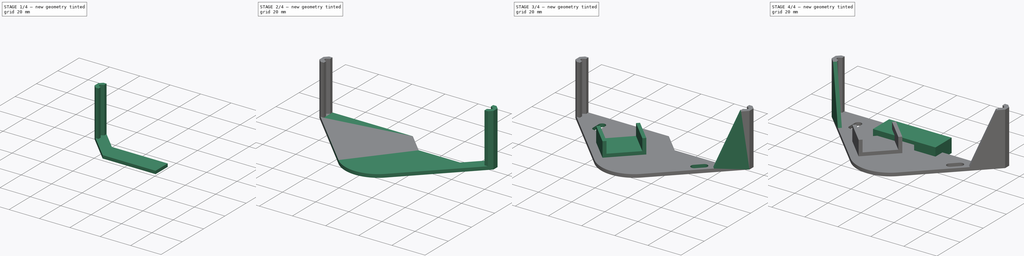
[diagram: build sequence overview — one tinted view per stage of 4, left to right]
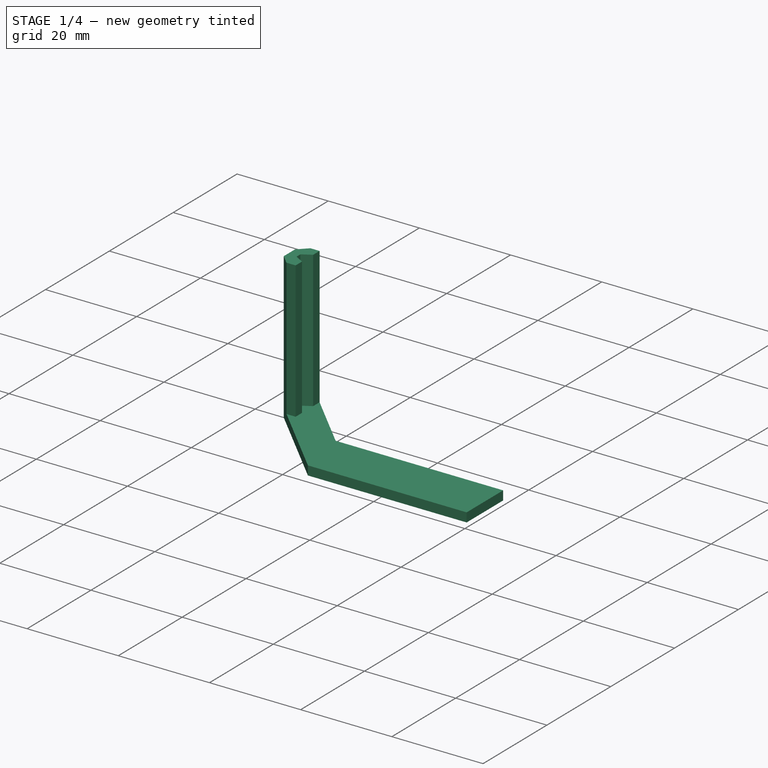
[diagram: stage 1 of 4 — iso view after this stage's code; geometry added in this stage tinted green]
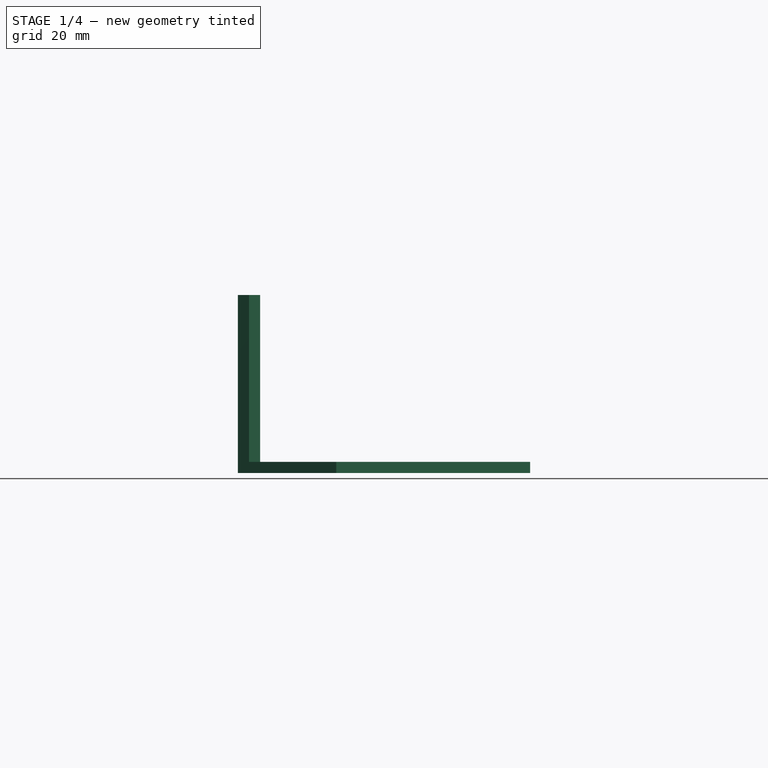
[diagram: stage 1 of 4 — front view after this stage's code; geometry added in this stage tinted green]
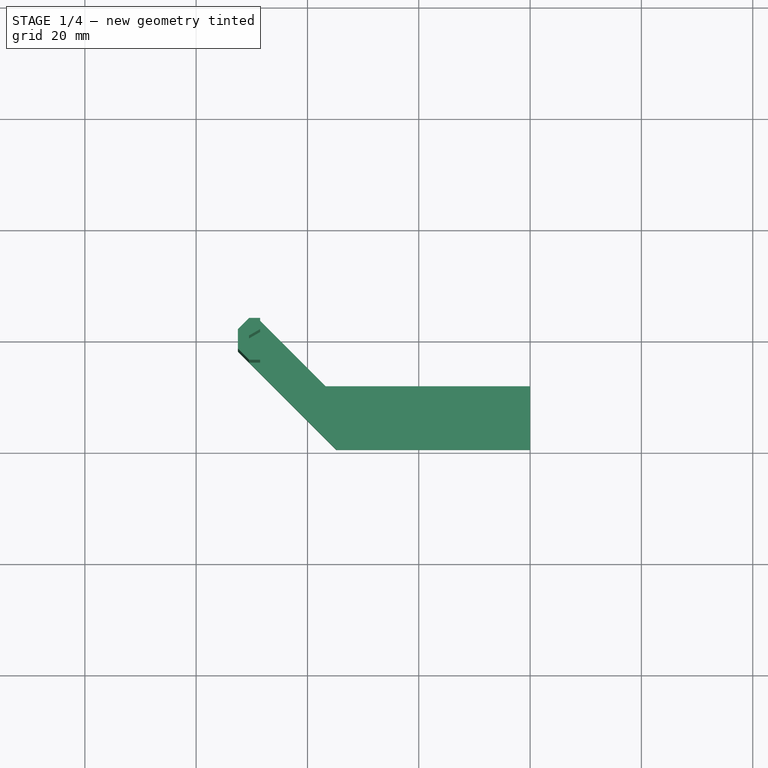
[diagram: stage 1 of 4 — top view after this stage's code; geometry added in this stage tinted green]
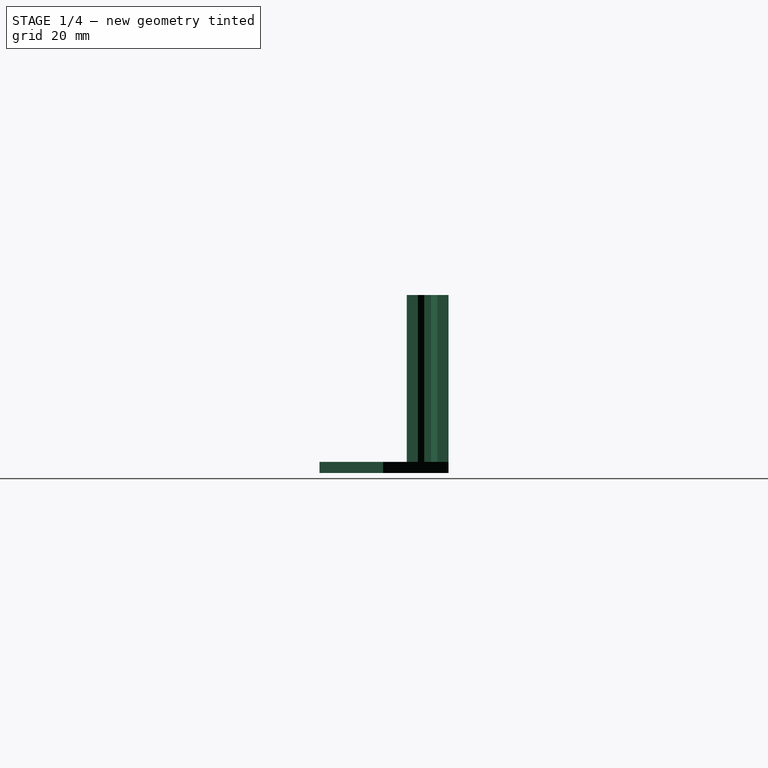
[diagram: stage 1 of 4 — right view after this stage's code; geometry added in this stage tinted green]
FCSTD DOCUMENT  (FreeCAD 1.0R39319 (Git))
Label: Superrollo_GW60_holder
License: All rights reserved
LicenseURL: https://en.wikipedia.org/wiki/All_rights_reserved
objects: Sketcher::SketchObject×9, PartDesign::Pad×8, PartDesign::Body×2, PartDesign::Mirrored×1, PartDesign::Pocket×1
note: 49 computed .brp shape members not serialized (recipe doc carries the construction recipe); baked Part::Feature solids carry a one-line shape summary decoded from their .brp

FEATURE [PartDesign::Body] Body  label="CableClampBody"
  AllowCompound = false
  Group = -> [Sketch,Pad]
  Origin = -> Origin
  Tip = -> Pad
FEATURE [Sketcher::SketchObject] Sketch001
  ArcFitTolerance = 1e-06
  AttachmentSupport = -> [XY_Plane001]
  FullyConstrained = true
  MakeInternals = false
  MapMode = 5
  expr: Constraints[15] = 101 / 2
  sketch-geometry (14):
    g0: LineSegment StartX=-50.5 StartY=0.6 StartZ=0 EndX=-50.5 EndY=-0.6 EndZ=0
    g1: LineSegment StartX=-50.5 StartY=-0.6 StartZ=0 EndX=-48.5 EndY=-1.7547 EndZ=0
    g2: LineSegment StartX=-48.5 StartY=-3.7547 StartZ=0 EndX=-50.5 EndY=-3.7547 EndZ=0
    g3: LineSegment StartX=-48.5 StartY=-1.7547 StartZ=0 EndX=-48.5 EndY=-3.7547 EndZ=0
    g4: LineSegment StartX=-50.5 StartY=0.6 StartZ=0 EndX=-48.5 EndY=1.7547 EndZ=0
    g5: LineSegment StartX=-48.5 StartY=3.7547 StartZ=0 EndX=-50.5 EndY=3.7547 EndZ=0
    g6: LineSegment StartX=-48.5 StartY=1.7547 StartZ=0 EndX=-48.5 EndY=3.7547 EndZ=0
    g7: LineSegment StartX=-52.5 StartY=1.7547 StartZ=0 EndX=-52.5 EndY=-1.7547 EndZ=0
    g8: ArcOfCircle [constr] CenterX=-50.5 CenterY=1.7547 CenterZ=0 NormalX=0 NormalY=0 NormalZ=1 AngleXU=0 Radius=2 StartAngle=1.5708 EndAngle=3.14159
    g9: GeomPoint [constr] X=-52.5 Y=3.7547 Z=0
    g10: LineSegment StartX=-50.5 StartY=3.7547 StartZ=0 EndX=-52.5 EndY=1.7547 EndZ=0
    g11: ArcOfCircle [constr] CenterX=-50.5 CenterY=-1.7547 CenterZ=0 NormalX=0 NormalY=0 NormalZ=1 AngleXU=0 Radius=2 StartAngle=3.14159 EndAngle=4.71239
    g12: GeomPoint [constr] X=-52.5 Y=-3.7547 Z=0
    g13: LineSegment StartX=-52.5 StartY=-1.7547 StartZ=0 EndX=-50.5 EndY=-3.7547 EndZ=0
  constraints (32):
    c: Coincident(g1,g0)
    c: Horizontal(g2)
    c: Coincident(g1,g3)
    c: Coincident(g3,g2)
    c: Vertical(g3)
    c: Coincident(g4,g6)
    c: Coincident(g6,g5)
    c: Coincident(g0,g4)
    c: Symmetric(g9,g12,g-1)
    c: Symmetric(g0,g0,g-1)
    c: Symmetric(g1,g4,g-1)
    c: Symmetric(g5,g2,g-1)
    c: DistanceX(g9,g0) = 2
    c: DistanceY(g6,g6) = 2
    c: DistanceY(g0,g0) = 1.2
    c: DistanceX(g0,g-1) = 50.5
    c: DistanceX(g12,g2) = 4
    c: Angle(g1,g4) = 1.0472
    c: PointOnObject(g9,g5)
    c: PointOnObject(g9,g7)
    c: Tangent(g5,g8) = -1.5708
    c: Tangent(g7,g8) = -1.5708
    c: Coincident(g10,g5)
    c: Coincident(g10,g7)
    c: PointOnObject(g12,g7)
    c: PointOnObject(g12,g2)
    c: Tangent(g7,g11) = -1.5708
    c: Tangent(g2,g11) = 1.5708
    c: Coincident(g13,g7)
    c: Coincident(g13,g2)
    c: Equal(g11,g8)
    c: Radius(g8) = 2
FEATURE [PartDesign::Pad] Pad001
  Direction = (0,0,1)
  Length = 30
  Length2 = 10
  Profile = -> Sketch001
  ReferenceAxis = -> Sketch001 [N_Axis]
  Refine = true
  Suppressed = false
  Type = 0
FEATURE [Sketcher::SketchObject] Sketch002
  ArcFitTolerance = 1e-06
  AttachmentSupport = -> [XY_Plane001]
  ExternalGeometry = -> [Pad001]
  FullyConstrained = true
  MakeInternals = false
  MapMode = 5
  sketch-geometry (8):
    g0: LineSegment StartX=-48.5 StartY=3.7547 StartZ=0 EndX=-50.5 EndY=3.7547 EndZ=0
    g1: LineSegment StartX=-50.5 StartY=3.7547 StartZ=0 EndX=-52.5 EndY=1.7547 EndZ=0
    g2: LineSegment StartX=-52.5 StartY=1.7547 StartZ=0 EndX=-52.5 EndY=-1.7547 EndZ=0
    g3: LineSegment StartX=-52.5 StartY=-1.7547 StartZ=0 EndX=-34.8223 EndY=-19.4324 EndZ=0
    g4: LineSegment StartX=-48.5 StartY=3.7547 StartZ=0 EndX=-36.7453 EndY=-8 EndZ=0
    g5: LineSegment StartX=-34.8223 StartY=-19.4324 StartZ=0 EndX=0 EndY=-19.4324 EndZ=0
    g6: LineSegment StartX=-36.7453 StartY=-8 StartZ=0 EndX=0 EndY=-8 EndZ=0
    g7: LineSegment StartX=0 StartY=-8 StartZ=0 EndX=0 EndY=-19.4324 EndZ=0
  constraints (20):
    c: Coincident(g-5,g0)
    c: Coincident(g0,g-5)
    c: Coincident(g0,g1)
    c: Coincident(g1,g-3)
    c: Coincident(g1,g2)
    c: Coincident(g2,g-3)
    c: Coincident(g2,g3)
    c: PointOnObject(g-4,g3)
    c: Distance(g3) = 25
    c: Coincident(g0,g4)
    c: Parallel(g4,g3)
    c: DistanceY(g4,g-1) = 8
    c: Coincident(g3,g5)
    c: Horizontal(g5)
    c: Coincident(g4,g6)
    c: Horizontal(g6)
    c: PointOnObject(g6,g-2)
    c: PointOnObject(g5,g-2)
    c: Coincident(g7,g6)
    c: Coincident(g7,g5)
FEATURE [PartDesign::Pad] Pad002
  BaseFeature = -> Pad001
  Direction = (0,0,1)
  Length = 2
  Length2 = 10
  Profile = -> Sketch002
  ReferenceAxis = -> Sketch002 [N_Axis]
  Refine = true
  Reversed = true
  Suppressed = false
  Type = 0
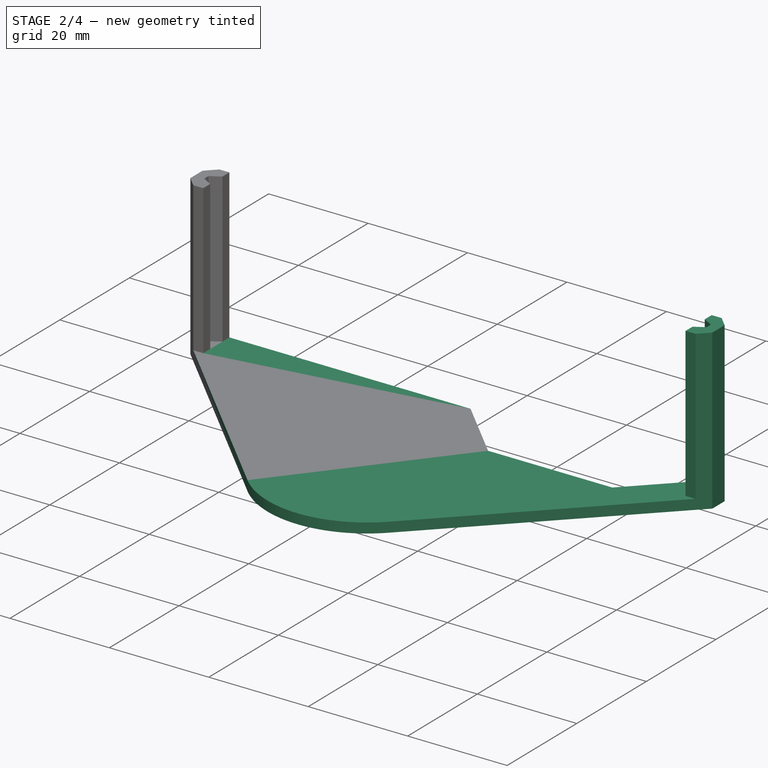
[diagram: stage 2 of 4 — iso view after this stage's code; geometry added in this stage tinted green]
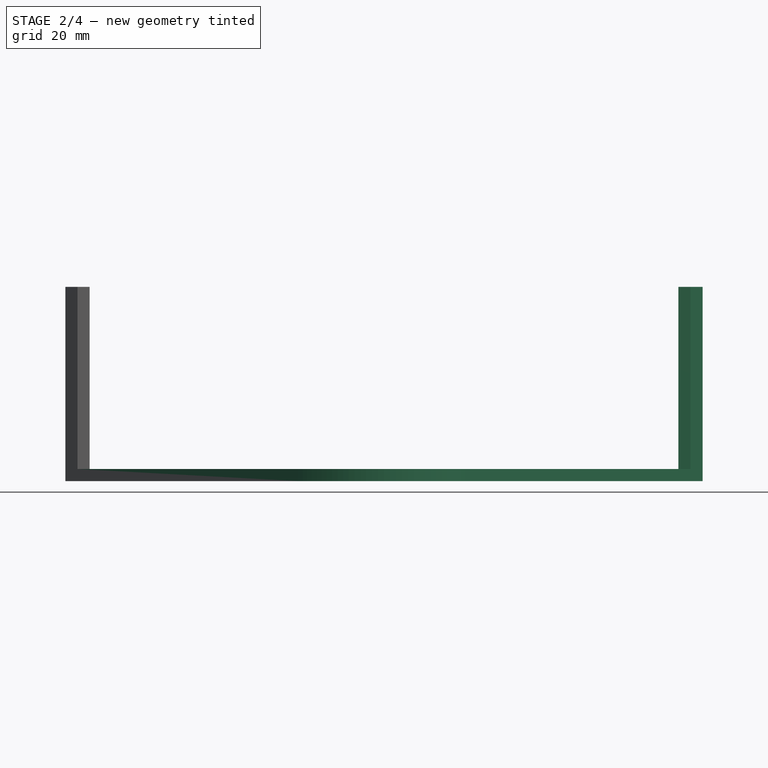
[diagram: stage 2 of 4 — front view after this stage's code; geometry added in this stage tinted green]
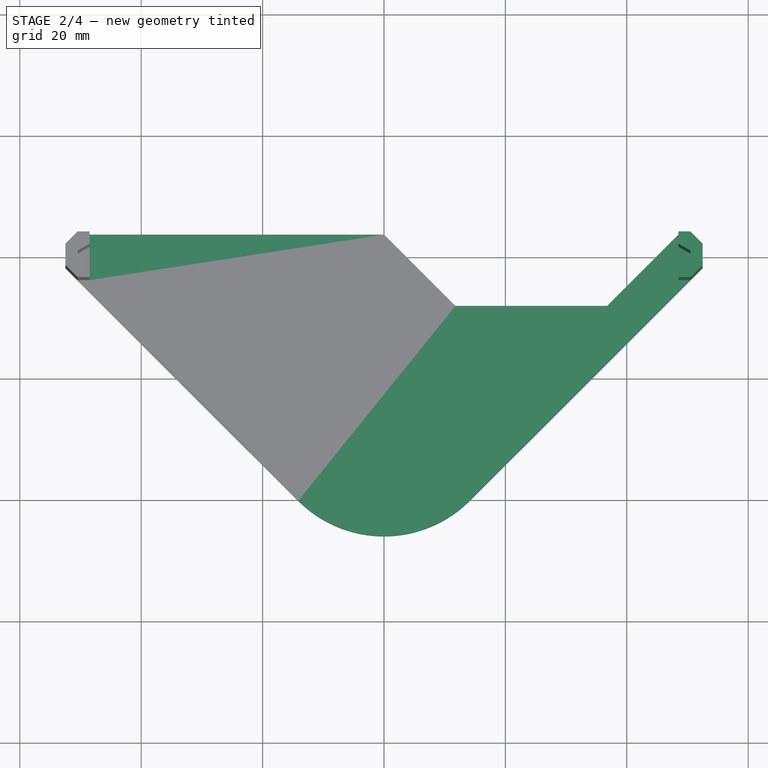
[diagram: stage 2 of 4 — top view after this stage's code; geometry added in this stage tinted green]
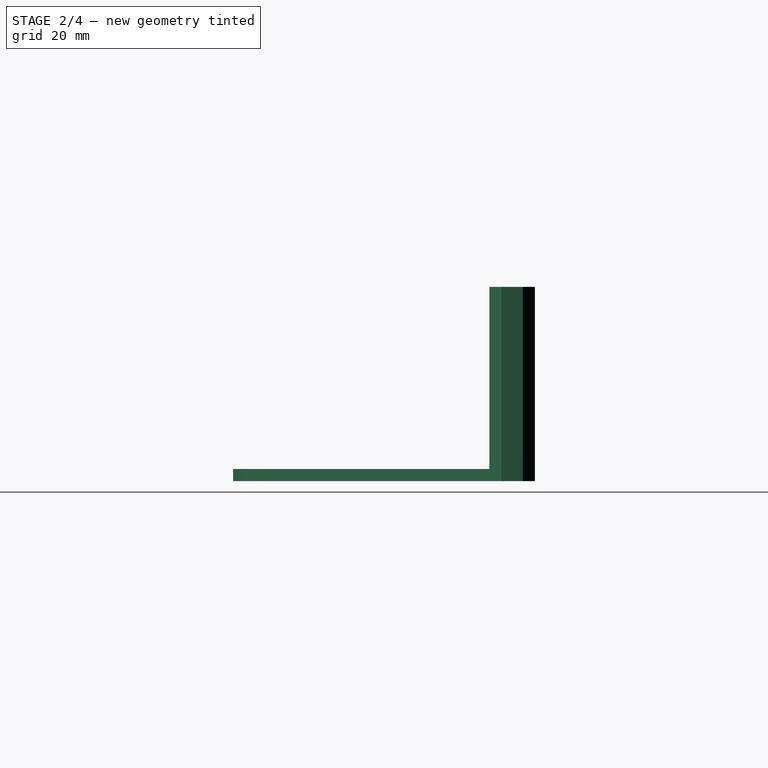
[diagram: stage 2 of 4 — right view after this stage's code; geometry added in this stage tinted green]
FEATURE [PartDesign::Mirrored] Mirrored
  BaseFeature = -> Pad002
  MirrorPlane = -> Sketch002 [V_Axis]
  Originals = -> [Pad002,Pad001]
  Refine = true
  Suppressed = false
  TransformMode = 0
FEATURE [Sketcher::SketchObject] Sketch003
  ArcFitTolerance = 1e-06
  AttachmentSupport = -> [XY_Plane001]
  ExternalGeometry = -> [Mirrored]
  FullyConstrained = true
  MakeInternals = false
  MapMode = 5
  sketch-geometry (4):
    g0: LineSegment StartX=11.7547 StartY=-8 StartZ=0 EndX=-36.7453 EndY=-8 EndZ=0
    g1: LineSegment StartX=-36.7453 StartY=-8 StartZ=0 EndX=-48.5 EndY=3.7547 EndZ=0
    g2: LineSegment StartX=-48.5 StartY=3.7547 StartZ=0 EndX=0 EndY=3.7547 EndZ=0
    g3: LineSegment StartX=0 StartY=3.7547 StartZ=0 EndX=11.7547 EndY=-8 EndZ=0
  constraints (10):
    c: PointOnObject(g0,g-4)
    c: Coincident(g0,g-4)
    c: Coincident(g1,g0)
    c: Coincident(g1,g-3)
    c: Coincident(g2,g1)
    c: PointOnObject(g2,g-2)
    c: Horizontal(g2)
    c: Coincident(g3,g2)
    c: Coincident(g3,g0)
    c: Parallel(g1,g3)
FEATURE [PartDesign::Pad] Pad003
  BaseFeature = -> Mirrored
  Direction = (0,0,1)
  Length = 2
  Length2 = 10
  Profile = -> Sketch003
  ReferenceAxis = -> Sketch003 [N_Axis]
  Refine = true
  Reversed = true
  Suppressed = false
  Type = 0
FEATURE [Sketcher::SketchObject] Sketch004
  ArcFitTolerance = 1e-06
  AttachmentSupport = -> [XY_Plane001]
  ExternalGeometry = -> [Pad003]
  FullyConstrained = true
  MakeInternals = false
  MapMode = 5
  sketch-geometry (5):
    g0: LineSegment StartX=-34.8223 StartY=-19.4324 StartZ=0 EndX=-14.1421 EndY=-40.1126 EndZ=0
    g1: LineSegment StartX=34.8223 StartY=-19.4324 StartZ=0 EndX=14.1421 EndY=-40.1126 EndZ=0
    g2: LineSegment StartX=34.8223 StartY=-19.4324 StartZ=0 EndX=-34.8223 EndY=-19.4324 EndZ=0
    g3: ArcOfCircle CenterX=-2.2e-15 CenterY=-25.9704 CenterZ=0 NormalX=0 NormalY=0 NormalZ=1 AngleXU=0 Radius=20 StartAngle=3.92699 EndAngle=5.49779
    g4: GeomPoint [constr] X=-1.12e-14 Y=-54.2547 Z=0
  constraints (11):
    c: Coincident(g0,g-3)
    c: Coincident(g1,g-3)
    c: Coincident(g2,g1)
    c: Coincident(g2,g0)
    c: Parallel(g-4,g0)
    c: Parallel(g-5,g1)
    c: PointOnObject(g4,g0)
    c: PointOnObject(g4,g1)
    c: Tangent(g0,g3) = -1.5708
    c: Tangent(g1,g3) = 1.5708
    c: Radius(g3) = 20
FEATURE [PartDesign::Pad] Pad004
  BaseFeature = -> Pad003
  Direction = (0,0,1)
  Length = 2
  Length2 = 10
  Profile = -> Sketch004
  ReferenceAxis = -> Sketch004 [N_Axis]
  Refine = true
  Reversed = true
  Suppressed = false
  Type = 0
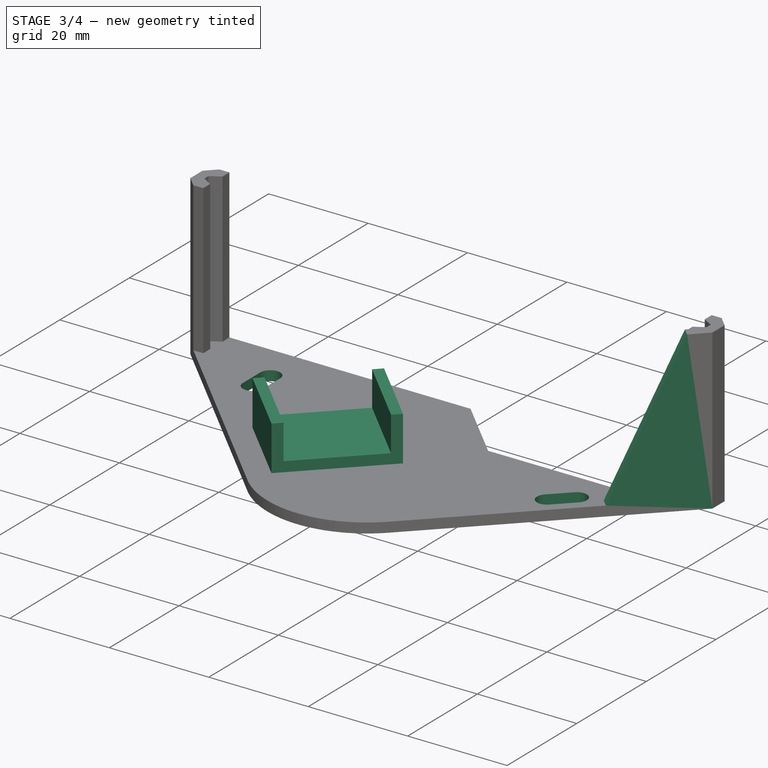
[diagram: stage 3 of 4 — iso view after this stage's code; geometry added in this stage tinted green]
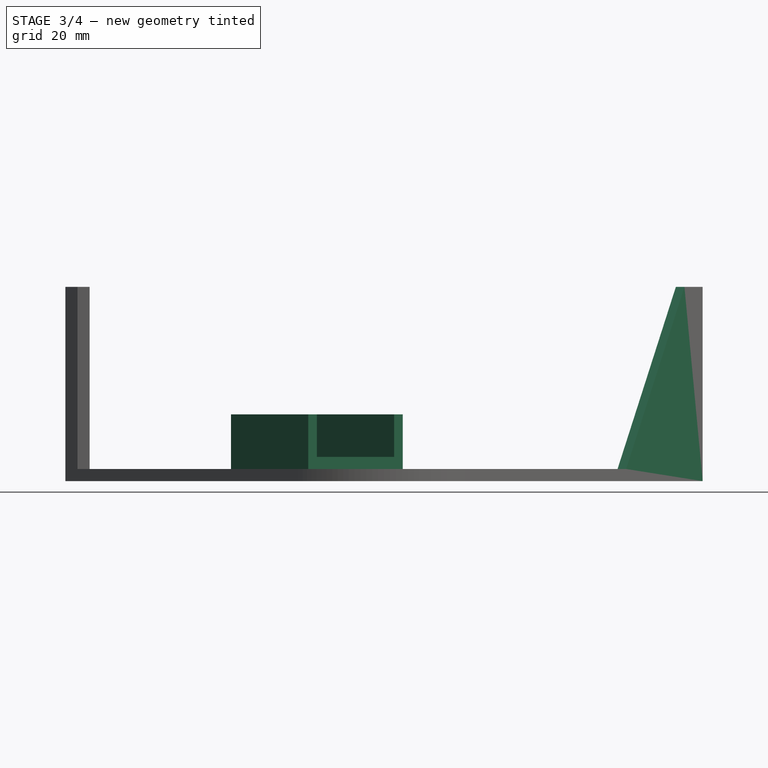
[diagram: stage 3 of 4 — front view after this stage's code; geometry added in this stage tinted green]
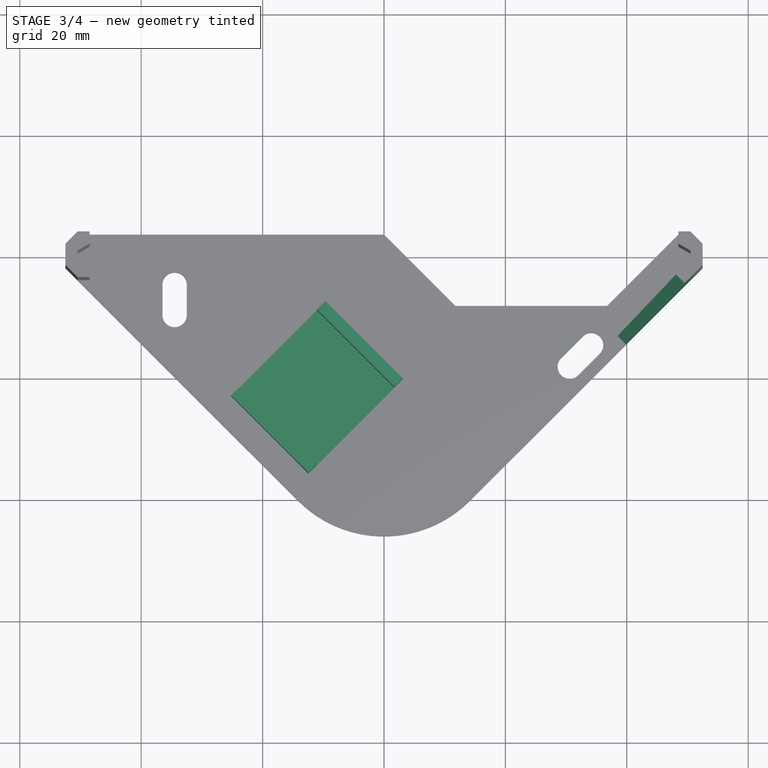
[diagram: stage 3 of 4 — top view after this stage's code; geometry added in this stage tinted green]
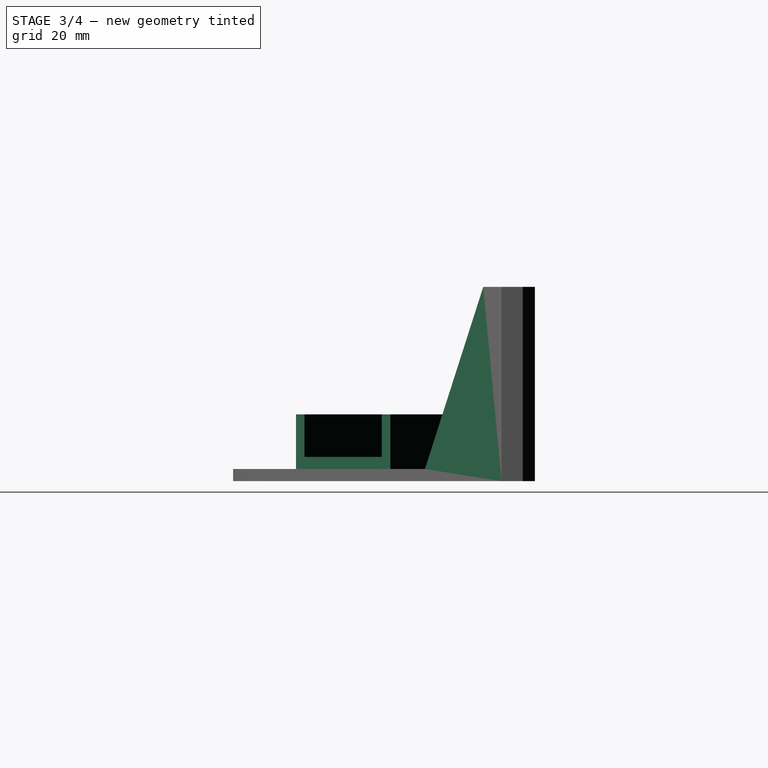
[diagram: stage 3 of 4 — right view after this stage's code; geometry added in this stage tinted green]
FEATURE [Sketcher::SketchObject] Sketch005
  ArcFitTolerance = 1e-06
  AttachmentSupport = -> [XY_Plane001]
  ExternalGeometry = -> [Pad004]
  FullyConstrained = true
  MakeInternals = false
  MapMode = 5
  sketch-geometry (10):
    g0: ArcOfCircle CenterX=-34.5 CenterY=-4.5 CenterZ=0 NormalX=0 NormalY=0 NormalZ=1 AngleXU=0 Radius=2 StartAngle=2e-16 EndAngle=3.14159
    g1: ArcOfCircle CenterX=-34.5 CenterY=-9.5 CenterZ=0 NormalX=0 NormalY=0 NormalZ=1 AngleXU=0 Radius=2 StartAngle=3.14159 EndAngle=6.28319
    g2: LineSegment StartX=-32.5 StartY=-4.5 StartZ=0 EndX=-32.5 EndY=-9.5 EndZ=0
    g3: LineSegment StartX=-36.5 StartY=-4.5 StartZ=0 EndX=-36.5 EndY=-9.5 EndZ=0
    g4: GeomPoint X=-34.5 Y=-7 Z=0
    g5: ArcOfCircle CenterX=34.1334 CenterY=-14.4645 CenterZ=0 NormalX=0 NormalY=0 NormalZ=1 AngleXU=0 Radius=2 StartAngle=5.49779 EndAngle=8.63938
    g6: ArcOfCircle CenterX=30.5979 CenterY=-18 CenterZ=0 NormalX=0 NormalY=0 NormalZ=1 AngleXU=0 Radius=2 StartAngle=2.35619 EndAngle=5.49779
    g7: LineSegment StartX=32.7192 StartY=-13.0503 StartZ=0 EndX=29.1837 EndY=-16.5858 EndZ=0
    g8: LineSegment StartX=35.5476 StartY=-15.8787 StartZ=0 EndX=32.0121 EndY=-19.4142 EndZ=0
    g9: GeomPoint X=32.3657 Y=-16.2322 Z=0
  constraints (22):
    c: Tangent(g0,g2) = 1.5708
    c: Tangent(g0,g3) = -1.5708
    c: Tangent(g1,g2) = 1.5708
    c: Tangent(g1,g3) = -1.5708
    c: Equal(g0,g1)
    c: Radius(g0) = 2
    c: Vertical(g2)
    c: DistanceX(g-3,g0) = 18
    c: Symmetric(g0,g1,g4)
    c: DistanceY(g4,g-1) = 7
    c: DistanceY(g3,g3) = 5
    c: Tangent(g5,g7) = -1.5708
    c: Tangent(g5,g8) = 1.5708
    c: Tangent(g6,g7) = -1.5708
    c: Tangent(g6,g8) = 1.5708
    c: Equal(g5,g6)
    c: Radius(g5) = 2
    c: Symmetric(g5,g6,g9)
    c: Equal(g7,g3)
    c: Distance(g4,g9) = 67.5
    c: DistanceY(g6,g-1) = 18
    c: Parallel(g-4,g8)
FEATURE [PartDesign::Pocket] Pocket
  BaseFeature = -> Pad004
  Direction = (0,0,-1)
  Length = 5
  Length2 = 5
  Profile = -> Sketch005
  ReferenceAxis = -> Sketch005 [N_Axis]
  Refine = true
  Suppressed = false
  Type = 1
FEATURE [Sketcher::SketchObject] Sketch006
  ArcFitTolerance = 1e-06
  AttachmentOffset = pos=(0,0,-22) rot=(0,0,1;0rad)
  AttachmentSupport = -> [Pocket]
  FullyConstrained = true
  MakeInternals = false
  MapMode = 5
  Placement = pos=(11.571,-11.571,2.4e-15) rot=(0.862856,0.357407,0.357407;1.71777rad)
  sketch-geometry (8):
    g0: LineSegment StartX=-34 StartY=0 StartZ=0 EndX=-34 EndY=9 EndZ=0
    g1: LineSegment StartX=-34 StartY=9 StartZ=0 EndX=-32 EndY=9 EndZ=0
    g2: LineSegment StartX=-32 StartY=9 StartZ=0 EndX=-32 EndY=2 EndZ=0
    g3: LineSegment StartX=-32 StartY=2 StartZ=0 EndX=-14 EndY=2 EndZ=0
    g4: LineSegment StartX=-14 StartY=2 StartZ=0 EndX=-14 EndY=9 EndZ=0
    g5: LineSegment StartX=-14 StartY=9 StartZ=0 EndX=-12 EndY=9 EndZ=0
    g6: LineSegment StartX=-12 StartY=9 StartZ=0 EndX=-12 EndY=0 EndZ=0
    g7: LineSegment StartX=-12 StartY=0 StartZ=0 EndX=-34 EndY=0 EndZ=0
  constraints (24):
    c: PointOnObject(g0,g-1)
    c: Vertical(g0)
    c: Coincident(g0,g1)
    c: Horizontal(g1)
    c: Coincident(g1,g2)
    c: Vertical(g2)
    c: Coincident(g2,g3)
    c: Horizontal(g3)
    c: Coincident(g3,g4)
    c: Vertical(g4)
    c: Coincident(g4,g5)
    c: Horizontal(g5)
    c: Coincident(g5,g6)
    c: PointOnObject(g6,g-1)
    c: Vertical(g6)
    c: Coincident(g6,g7)
    c: Coincident(g7,g0)
    c: Equal(g1,g5)
    c: Equal(g4,g2)
    c: DistanceX(g5,g5) = 2
    c: DistanceY(g4,g4) = 7
    c: DistanceY(g6,g3) = 2
    c: DistanceX(g3,g3) = 18
    c: DistanceX(g6,g-1) = 12
FEATURE [PartDesign::Pad] Pad005
  BaseFeature = -> Pocket
  Direction = (0.707107,-0.707107,-1e-16)
  Length = 18
  Length2 = 10
  Profile = -> Sketch006
  ReferenceAxis = -> Sketch006 [N_Axis]
  Refine = true
  Reversed = true
  Suppressed = false
  Type = 0
FEATURE [Sketcher::SketchObject] Sketch007
  ArcFitTolerance = 1e-06
  AttachmentSupport = -> [Pad005]
  ExternalGeometry = -> [Pad005]
  FullyConstrained = true
  MakeInternals = false
  MapMode = 5
  Placement = pos=(27.1274,-27.1274,0) rot=(0.862856,0.357407,0.357407;1.71777rad)
  sketch-geometry (4):
    g0: LineSegment StartX=18.0539 StartY=0 StartZ=0 EndX=33.0539 EndY=0 EndZ=0
    g1: LineSegment StartX=33.0539 StartY=0 StartZ=0 EndX=33.0539 EndY=30 EndZ=0
    g2: LineSegment StartX=33.0539 StartY=30 StartZ=0 EndX=31.6397 EndY=30 EndZ=0
    g3: LineSegment StartX=31.6397 StartY=30 StartZ=0 EndX=18.0539 EndY=0 EndZ=0
  constraints (9):
    c: Coincident(g0,g-3)
    c: Horizontal(g0)
    c: Coincident(g0,g1)
    c: DistanceX(g0,g0) = 15
    c: Coincident(g1,g2)
    c: Coincident(g2,g-4)
    c: Coincident(g2,g3)
    c: Coincident(g3,g0)
    c: Coincident(g1,g-4)
FEATURE [PartDesign::Pad] Pad006
  BaseFeature = -> Pad005
  Direction = (0.707107,-0.707107,-1e-16)
  Length = 2
  Length2 = 10
  Profile = -> Sketch007
  ReferenceAxis = -> Sketch007 [N_Axis]
  Refine = true
  Reversed = true
  Suppressed = false
  Type = 0
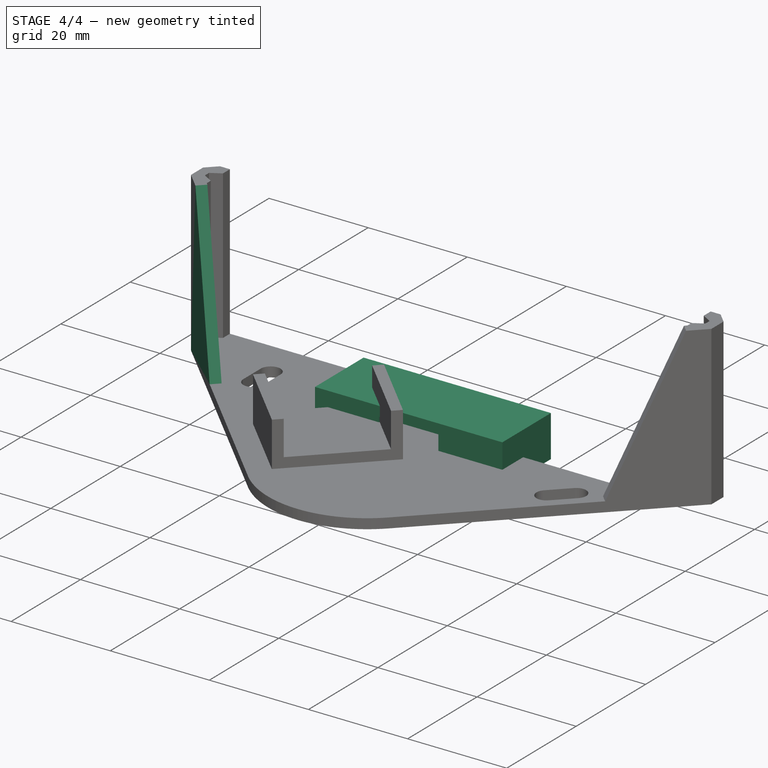
[diagram: stage 4 of 4 — iso view after this stage's code; geometry added in this stage tinted green]
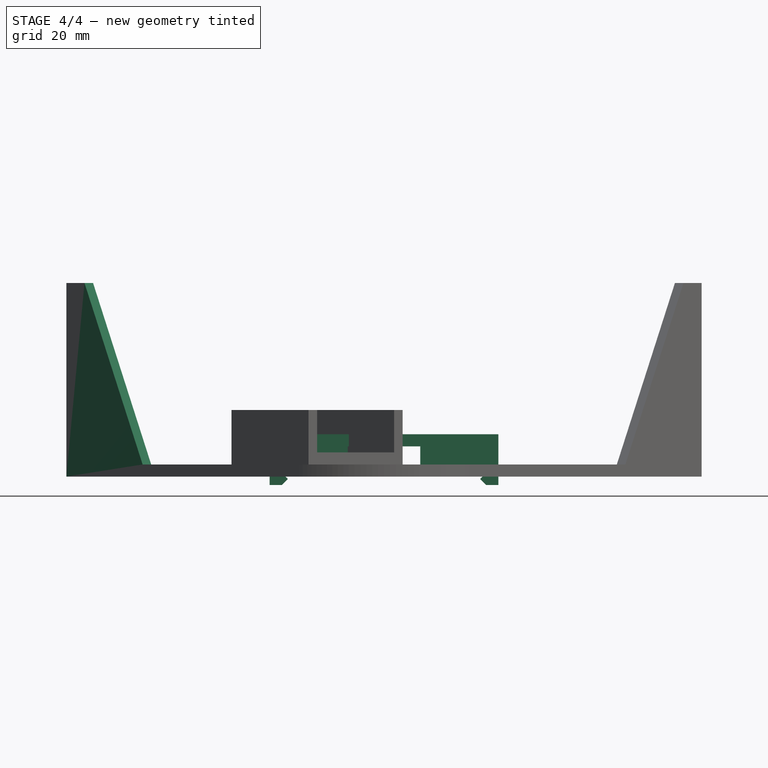
[diagram: stage 4 of 4 — front view after this stage's code; geometry added in this stage tinted green]
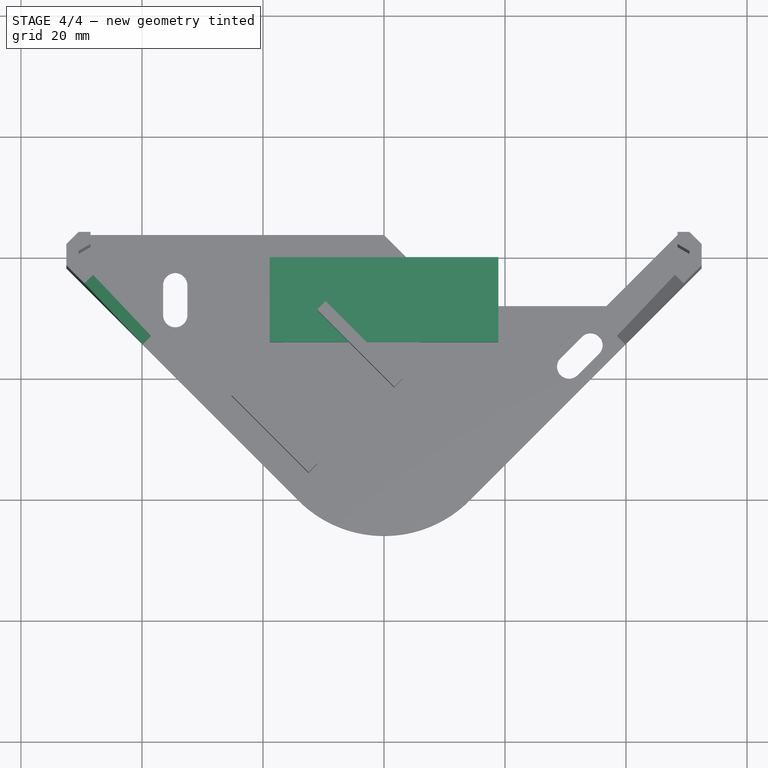
[diagram: stage 4 of 4 — top view after this stage's code; geometry added in this stage tinted green]
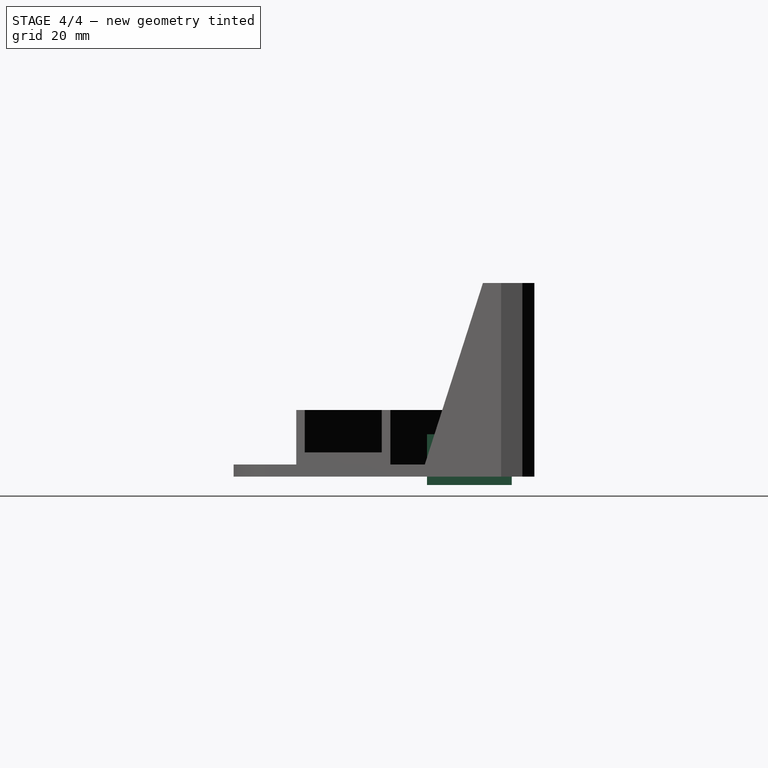
[diagram: stage 4 of 4 — right view after this stage's code; geometry added in this stage tinted green]
FEATURE [Sketcher::SketchObject] Sketch
  ArcFitTolerance = 1e-06
  AttachmentSupport = -> [XZ_Plane]
  FullyConstrained = true
  MakeInternals = false
  MapMode = 5
  Placement = pos=(0,0,0) rot=(1,0,0;1.5708rad)
  expr: Constraints[32] = 90 + 45
  sketch-geometry (16):
    g0: LineSegment StartX=-6 StartY=0 StartZ=0 EndX=-6 EndY=3 EndZ=0
    g1: LineSegment StartX=-6 StartY=3 StartZ=0 EndX=6 EndY=3 EndZ=0
    g2: LineSegment StartX=6 StartY=3 StartZ=0 EndX=6 EndY=0 EndZ=0
    g3: LineSegment StartX=6 StartY=0 StartZ=0 EndX=16.9 EndY=0 EndZ=0
    g4: LineSegment StartX=16.9 StartY=0 StartZ=0 EndX=16.9 EndY=-1.4 EndZ=0
    g5: LineSegment StartX=16.9 StartY=-1.4 StartZ=0 EndX=15.9 EndY=-2.4 EndZ=0
    g6: LineSegment StartX=15.9 StartY=-2.4 StartZ=0 EndX=16.9 EndY=-3.4 EndZ=0
    g7: LineSegment StartX=16.9 StartY=-3.4 StartZ=0 EndX=18.9 EndY=-3.4 EndZ=0
    g8: LineSegment StartX=18.9 StartY=-3.4 StartZ=0 EndX=18.9 EndY=5 EndZ=0
    g9: LineSegment StartX=18.9 StartY=5 StartZ=0 EndX=-18.9 EndY=5 EndZ=0
    g10: LineSegment StartX=-6 StartY=0 StartZ=0 EndX=-16.9 EndY=0 EndZ=0
    g11: LineSegment StartX=-16.9 StartY=0 StartZ=0 EndX=-16.9 EndY=-1.4 EndZ=0
    g12: LineSegment StartX=-16.9 StartY=-1.4 StartZ=0 EndX=-15.9 EndY=-2.4 EndZ=0
    g13: LineSegment StartX=-15.9 StartY=-2.4 StartZ=0 EndX=-16.9 EndY=-3.4 EndZ=0
    g14: LineSegment StartX=-16.9 StartY=-3.4 StartZ=0 EndX=-18.9 EndY=-3.4 EndZ=0
    g15: LineSegment StartX=-18.9 StartY=-3.4 StartZ=0 EndX=-18.9 EndY=5 EndZ=0
  constraints (43):
    c: PointOnObject(g0,g-1)
    c: Vertical(g0)
    c: Coincident(g0,g1)
    c: Horizontal(g1)
    c: Coincident(g1,g2)
    c: Vertical(g2)
    c: Coincident(g2,g3)
    c: PointOnObject(g3,g-1)
    c: Coincident(g3,g4)
    c: Vertical(g4)
    c: Coincident(g4,g5)
    c: Coincident(g5,g6)
    c: Coincident(g6,g7)
    c: Coincident(g7,g8)
    c: Vertical(g8)
    c: Coincident(g8,g9)
    c: Horizontal(g7)
    c: Coincident(g10,g11)
    c: Vertical(g11)
    c: Coincident(g11,g12)
    c: Coincident(g12,g13)
    c: Coincident(g13,g14)
    c: Coincident(g14,g15)
    c: Vertical(g15)
    c: Horizontal(g14)
    c: Coincident(g9,g15)
    c: Coincident(g10,g0)
    c: DistanceY(g4,g4) = 1.4
    c: DistanceX(g10,g3) = 33.8
    c: DistanceX(g5,g4) = 1
    c: DistanceX(g1,g1) = 12
    c: DistanceY(g2,g2) = 3
    c: Angle(g4,g5) = 2.35619
    c: Perpendicular(g5,g6)
    c: Equal(g5,g6)
    c: DistanceX(g7,g7) = 2
    c: DistanceY(g1,g8) = 2
    c: Symmetric(g2,g0,g-2)
    c: Symmetric(g9,g8,g-2)
    c: Symmetric(g11,g4,g-2)
    c: Symmetric(g12,g5,g-2)
    c: Symmetric(g13,g6,g-2)
    c: Horizontal(g10)
FEATURE [PartDesign::Pad] Pad
  Direction = (0,-1,2e-16)
  Length = 14
  Length2 = 10
  Placement = pos=(0,0,0) rot=(1,0,0;1.5708rad)
  Profile = -> Sketch
  ReferenceAxis = -> Sketch [N_Axis]
  Refine = true
  Suppressed = false
  Type = 0
FEATURE [Sketcher::SketchObject] Sketch008
  ArcFitTolerance = 1e-06
  AttachmentSupport = -> [Pad006]
  ExternalGeometry = -> [Pad006]
  FullyConstrained = true
  MakeInternals = false
  MapMode = 5
  Placement = pos=(-27.1274,-27.1274,0) rot=(0.862856,-0.357407,-0.357407;1.71777rad)
  sketch-geometry (4):
    g0: LineSegment StartX=-18.0539 StartY=0 StartZ=0 EndX=-33.0539 EndY=0 EndZ=0
    g1: LineSegment StartX=-33.0539 StartY=30 StartZ=0 EndX=-33.0539 EndY=0 EndZ=0
    g2: LineSegment StartX=-33.0539 StartY=30 StartZ=0 EndX=-31.6397 EndY=30 EndZ=0
    g3: LineSegment StartX=-31.6397 StartY=30 StartZ=0 EndX=-18.0539 EndY=0 EndZ=0
  constraints (9):
    c: PointOnObject(g0,g-1)
    c: Coincident(g0,g-3)
    c: DistanceX(g0,g0) = 15
    c: Coincident(g1,g0)
    c: Coincident(g1,g2)
    c: Coincident(g2,g-4)
    c: Coincident(g2,g3)
    c: Coincident(g3,g0)
    c: Coincident(g1,g-4)
FEATURE [PartDesign::Pad] Pad007
  BaseFeature = -> Pad006
  Direction = (-0.707107,-0.707107,-1e-16)
  Length = 2
  Length2 = 10
  Profile = -> Sketch008
  ReferenceAxis = -> Sketch008 [N_Axis]
  Refine = true
  Reversed = true
  Suppressed = false
  Type = 0
FEATURE [PartDesign::Body] Body001  label="GW60HolderBody"
  AllowCompound = false
  Group = -> [Sketch001,Pad001,Sketch002,Pad002,Mirrored,Sketch003,Pad003,Sketch004,Pad004,Sketch005,Pocket,Sketch006,Pad005,Sketch007,Pad006,Sketch008,Pad007]
  Origin = -> Origin001
  Tip = -> Pad007
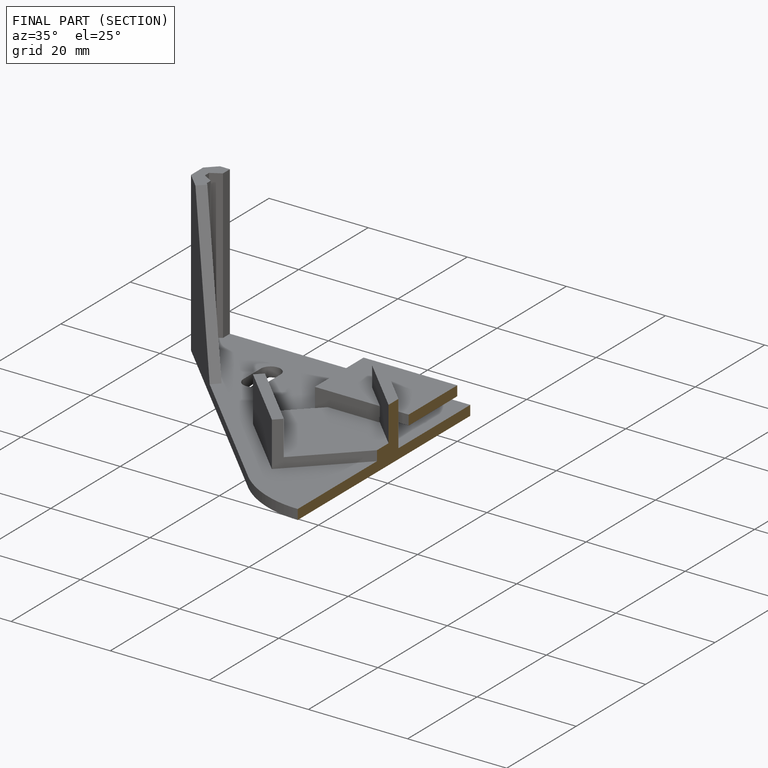
[diagram: finished part — half-section view (interior)]
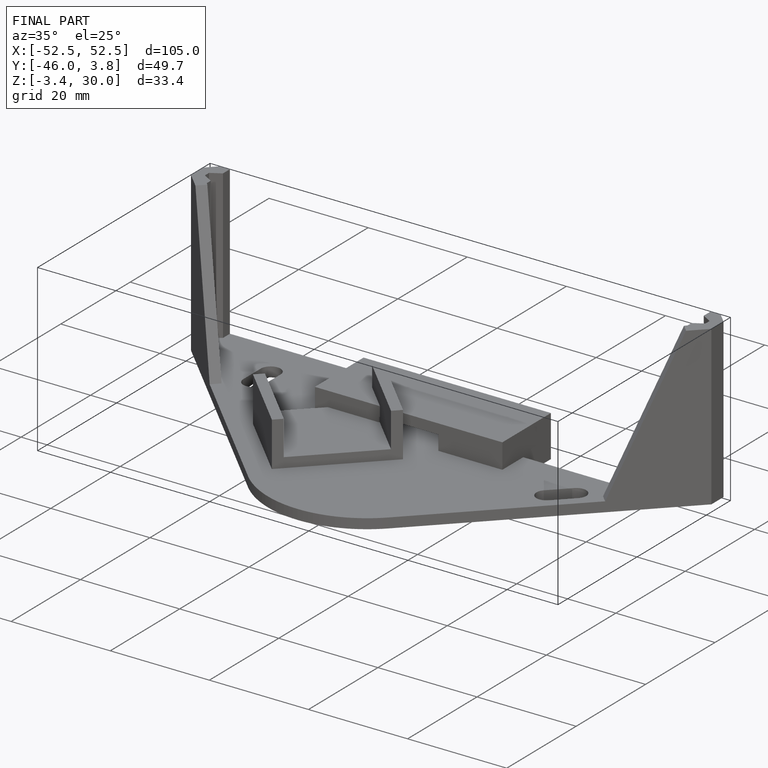
[diagram: finished part — iso view with bounding-box wireframe]
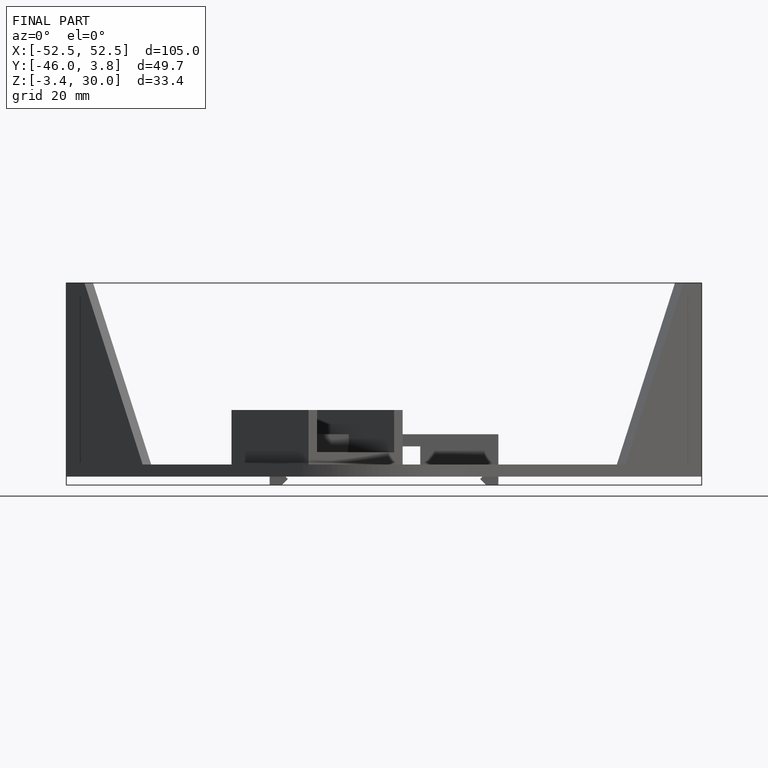
[diagram: finished part — front view with bounding-box wireframe]
